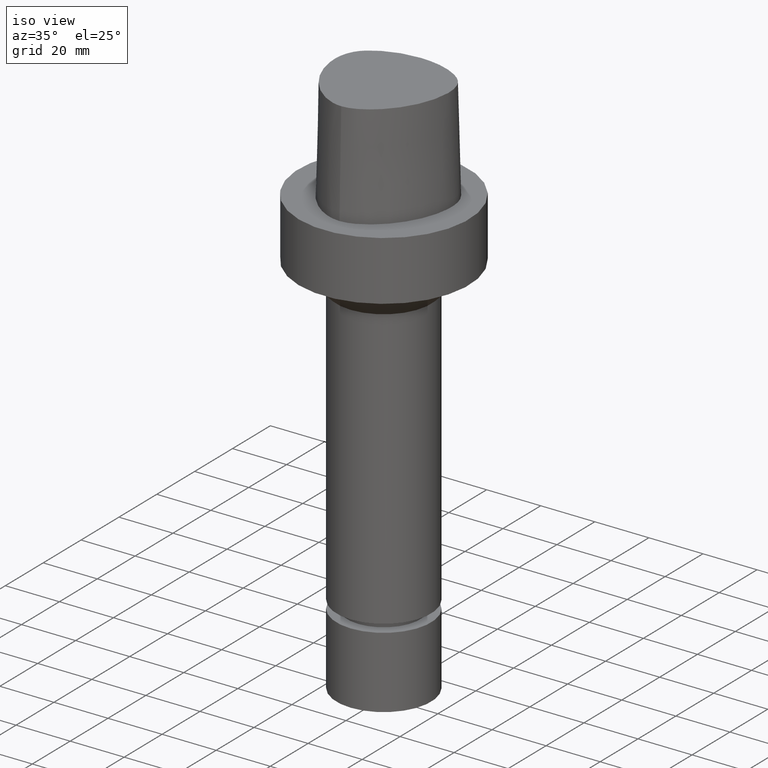
[diagram: clean part render]
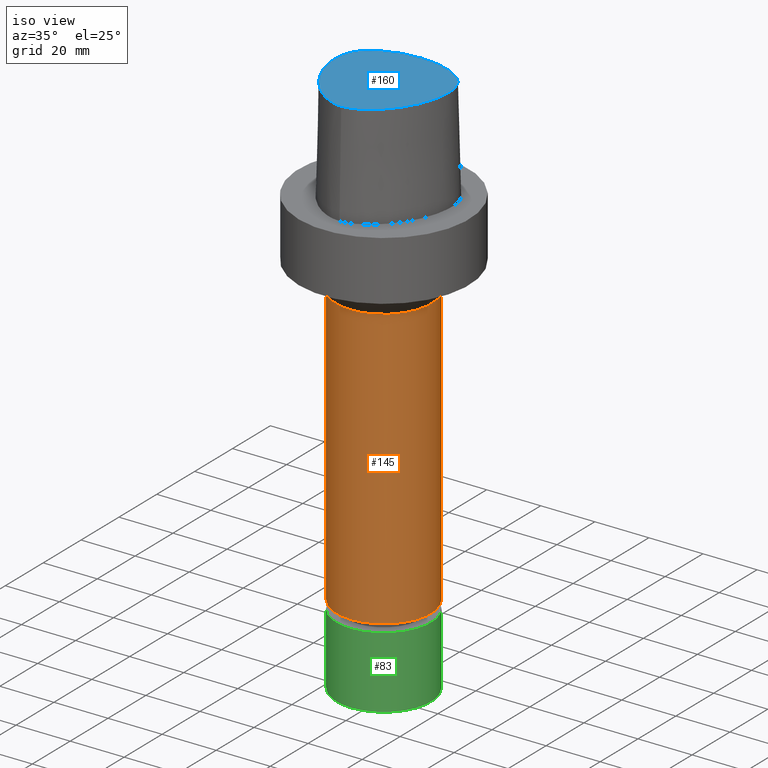
[diagram: same view with three faces highlighted in distinct colors, each labeled with its STEP entity id]
A machine part, iso view with three faces highlighted in distinct colors.
Their STEP definitions:

[orange] entity #145 — the highlighted cylindrical surface (bore or boss wall) has radius 17.5 mm, axis along (0, 0, -1).
#131=EDGE_CURVE('Unnamed[1]',#278,#278,#279,.T.);
#145=ADVANCED_FACE('Unnamed[1]',(#296,#297),#298,.T.);
#149=EDGE_CURVE('Unnamed[1]',#302,#302,#303,.T.);
#278=VERTEX_POINT('',#577);
#279=CIRCLE('',#578,17.4999999999995);
#296=FACE_BOUND('',#599,.T.);
#297=FACE_BOUND('',#600,.T.);
#298=CYLINDRICAL_SURFACE('',#601,17.4999999999997);
#302=VERTEX_POINT('',#607);
#303=CIRCLE('',#608,17.4999999999999);
#577=CARTESIAN_POINT('',(8.29698206422331E-015,17.4999999999996,-135.5));
#578=AXIS2_PLACEMENT_3D('',#818,#819,#820);
#599=EDGE_LOOP('',(#838));
#600=EDGE_LOOP('',(#839));
#601=AXIS2_PLACEMENT_3D('',#840,#841,#842);
#607=CARTESIAN_POINT('',(1.95943487863578E-015,17.4999999999999,-32.0000000000002));
#608=AXIS2_PLACEMENT_3D('',#846,#847,#848);
#818=CARTESIAN_POINT('',(8.29698206422331E-015,1.65939641284466E-014,-135.5));
#819=DIRECTION('',(6.12323399573677E-017,1.22464679914735E-016,-1.0));
#820=DIRECTION('',(-1.23259516440783E-032,1.0,1.22464679914735E-016));
#838=ORIENTED_EDGE('',*,*,#131,.F.);
#839=ORIENTED_EDGE('',*,*,#149,.T.);
#840=CARTESIAN_POINT('',(5.12820847142954E-015,1.02564169428591E-014,-83.75));
#841=DIRECTION('',(6.12323399573677E-017,1.22464679914735E-016,-1.0));
#842=DIRECTION('',(-1.23259516440783E-032,1.0,1.22464679914735E-016));
#846=CARTESIAN_POINT('',(1.95943487863578E-015,3.91886975727156E-015,-32.0000000000003));
#847=DIRECTION('',(6.12323399573677E-017,1.22464679914735E-016,-1.0));
#848=DIRECTION('',(-1.23259516440783E-032,1.0,1.22464679914735E-016));

[blue] entity #160 — the highlighted planar face has unit normal (-0, 0, 1).
#110=EDGE_CURVE('Unnamed[1]',#214,#248,#249,.T.);
#160=ADVANCED_FACE('Unnamed[1]',(#319),#320,.T.);
#168=EDGE_CURVE('Unnamed[1]',#248,#214,#331,.T.);
#214=VERTEX_POINT('',#377);
#248=VERTEX_POINT('',#489);
#249=B_SPLINE_CURVE_WITH_KNOTS('',3,(#490,#491,#492,#493,#494,#495,#496,#497,#498,#499,#500,#501,#502,#503,#504,#505),.UNSPECIFIED.,.F.,.F.,(4,1,1,1,1,1,1,1,1,1,1,1,1,4),(0.0,0.447924670568964,0.9388024242536,1.50591409090711,2.07314340012323,2.72424957442464,3.2253501842849,3.80982102049476,4.34867996267067,4.85900173381144,5.37972031856977,6.03459825488646,6.61113557741484,6.61513393087395),.UNSPECIFIED.);
#319=FACE_OUTER_BOUND('',#628,.T.);
#320=PLANE('',#629);
#331=B_SPLINE_CURVE_WITH_KNOTS('',3,(#714,#715,#716,#717,#718,#719,#720,#721,#722,#723,#724,#725,#726,#727,#728,#729),.UNSPECIFIED.,.F.,.F.,(4,1,1,1,1,1,1,1,1,1,1,1,1,4),(6.61513393087476,6.99917207152274,7.48193246986995,7.96289324787093,8.45540287038584,9.10291653679981,9.67129810936083,10.1618749681153,10.6358867802489,11.1080734988593,11.6043706019633,12.09451993853,12.6985979284494,13.2302678617486),.UNSPECIFIED.);
#377=CARTESIAN_POINT('',(-0.001218547003662,19.7276821925089,38.0));
#489=CARTESIAN_POINT('',(0.038736923393866,-22.5191997536361,38.0));
#490=CARTESIAN_POINT('',(-0.001218547003662,19.7276821925089,38.0));
#491=CARTESIAN_POINT('',(-1.49408492138443,19.6585333605309,38.0));
#492=CARTESIAN_POINT('',(-4.62297391420352,19.513604770166,38.0));
#493=CARTESIAN_POINT('',(-9.56160616752212,18.4291575730197,38.0));
#494=CARTESIAN_POINT('',(-14.5427684976927,16.2697452580488,38.0));
#495=CARTESIAN_POINT('',(-19.4315563551602,12.5302108980807,38.0));
#496=CARTESIAN_POINT('',(-21.306358833612,6.76352894547076,38.0));
#497=CARTESIAN_POINT('',(-21.0724946936277,0.957075236984038,38.0));
#498=CARTESIAN_POINT('',(-19.7876470880144,-4.34628503581652,38.0));
#499=CARTESIAN_POINT('',(-17.5396999600095,-9.33314444653089,38.0));
#500=CARTESIAN_POINT('',(-14.645447733857,-13.7185760345629,38.0));
#501=CARTESIAN_POINT('',(-10.7996726536643,-17.856257282137,38.0));
#502=CARTESIAN_POINT('',(-6.00479510196376,-21.2687382067675,38.0));
#503=CARTESIAN_POINT('',(-1.90747171908525,-22.5250621415864,38.0));
#504=CARTESIAN_POINT('',(0.025424107066464,-22.5192678176378,38.0));
#505=CARTESIAN_POINT('',(0.038736923394311,-22.519199753636,38.0));
#628=EDGE_LOOP('',(#865,#866));
#629=AXIS2_PLACEMENT_3D('',#867,#868,#869);
#714=CARTESIAN_POINT('',(0.038736923394311,-22.519199753636,38.0));
#715=CARTESIAN_POINT('',(1.31742058183662,-22.512662269405,38.0));
#716=CARTESIAN_POINT('',(4.2093773447498,-21.9116226439989,38.0));
#717=CARTESIAN_POINT('',(8.20895504542113,-19.7798683845067,38.0));
#718=CARTESIAN_POINT('',(11.9784633234593,-16.681663904162,38.0));
#719=CARTESIAN_POINT('',(15.5308821579362,-12.5807487594113,38.0));
#720=CARTESIAN_POINT('',(18.4566248438667,-7.64932246015528,38.0));
#721=CARTESIAN_POINT('',(20.4036090752029,-2.27012499825289,38.0));
#722=CARTESIAN_POINT('',(21.2357187429189,2.79891401173156,38.0));
#723=CARTESIAN_POINT('',(21.0811206267748,7.62543090736657,38.0));
#724=CARTESIAN_POINT('',(19.3383577336563,12.2772250726194,38.0));
#725=CARTESIAN_POINT('',(15.5796322014404,15.5799672120682,38.0));
#726=CARTESIAN_POINT('',(10.8392956074438,17.9834601687347,38.0));
#727=CARTESIAN_POINT('',(5.56068045850571,19.4586143858472,38.0));
#728=CARTESIAN_POINT('',(1.77223893711014,19.6418877095654,38.0));
#729=CARTESIAN_POINT('',(-0.001218367817519,19.7276822012873,38.0));
#865=ORIENTED_EDGE('',*,*,#110,.T.);
#866=ORIENTED_EDGE('',*,*,#168,.T.);
#867=CARTESIAN_POINT('',(0.008647668684817,1.77491953635526,38.0));
#868=DIRECTION('',(-0.0,2.95577857036584E-049,1.0));
#869=DIRECTION('',(1.0,0.0,0.0));

[green] entity #83 — the highlighted cylindrical surface (bore or boss wall) has radius 17.5 mm, axis along (0, 0, -1).
#83=ADVANCED_FACE('Unnamed[1]',(#207,#208),#209,.T.);
#139=EDGE_CURVE('Unnamed[1]',#288,#288,#289,.T.);
#154=EDGE_CURVE('Unnamed[1]',#310,#310,#311,.T.);
#207=FACE_BOUND('',#369,.T.);
#208=FACE_BOUND('',#370,.T.);
#209=CYLINDRICAL_SURFACE('',#371,17.5);
#288=VERTEX_POINT('',#589);
#289=CIRCLE('',#590,17.5);
#310=VERTEX_POINT('',#617);
#311=CIRCLE('',#618,17.5);
#369=EDGE_LOOP('',(#753));
#370=EDGE_LOOP('',(#754));
#371=AXIS2_PLACEMENT_3D('',#755,#756,#757);
#589=CARTESIAN_POINT('',(1.01033360929657E-014,17.5,-165.0));
#590=AXIS2_PLACEMENT_3D('',#827,#828,#829);
#617=CARTESIAN_POINT('',(8.48068001842678E-015,17.5,-138.500015258789));
#618=AXIS2_PLACEMENT_3D('',#855,#856,#857);
#753=ORIENTED_EDGE('',*,*,#139,.F.);
#754=ORIENTED_EDGE('',*,*,#154,.T.);
#755=CARTESIAN_POINT('',(9.29200805569622E-015,1.85840161113924E-014,-151.750007629394));
#756=DIRECTION('',(6.12323399573677E-017,1.22464679914735E-016,-1.0));
#757=DIRECTION('',(-1.23259516440783E-032,1.0,1.22464679914735E-016));
#827=CARTESIAN_POINT('',(1.01033360929657E-014,2.02066721859313E-014,-165.0));
#828=DIRECTION('',(6.12323399573677E-017,1.22464679914735E-016,-1.0));
#829=DIRECTION('',(-1.23259516440783E-032,1.0,1.22464679914735E-016));
#855=CARTESIAN_POINT('',(8.48068001842678E-015,1.69613600368536E-014,-138.500015258789));
#856=DIRECTION('',(6.12323399573677E-017,1.22464679914735E-016,-1.0));
#857=DIRECTION('',(-1.23259516440783E-032,1.0,1.22464679914735E-016));